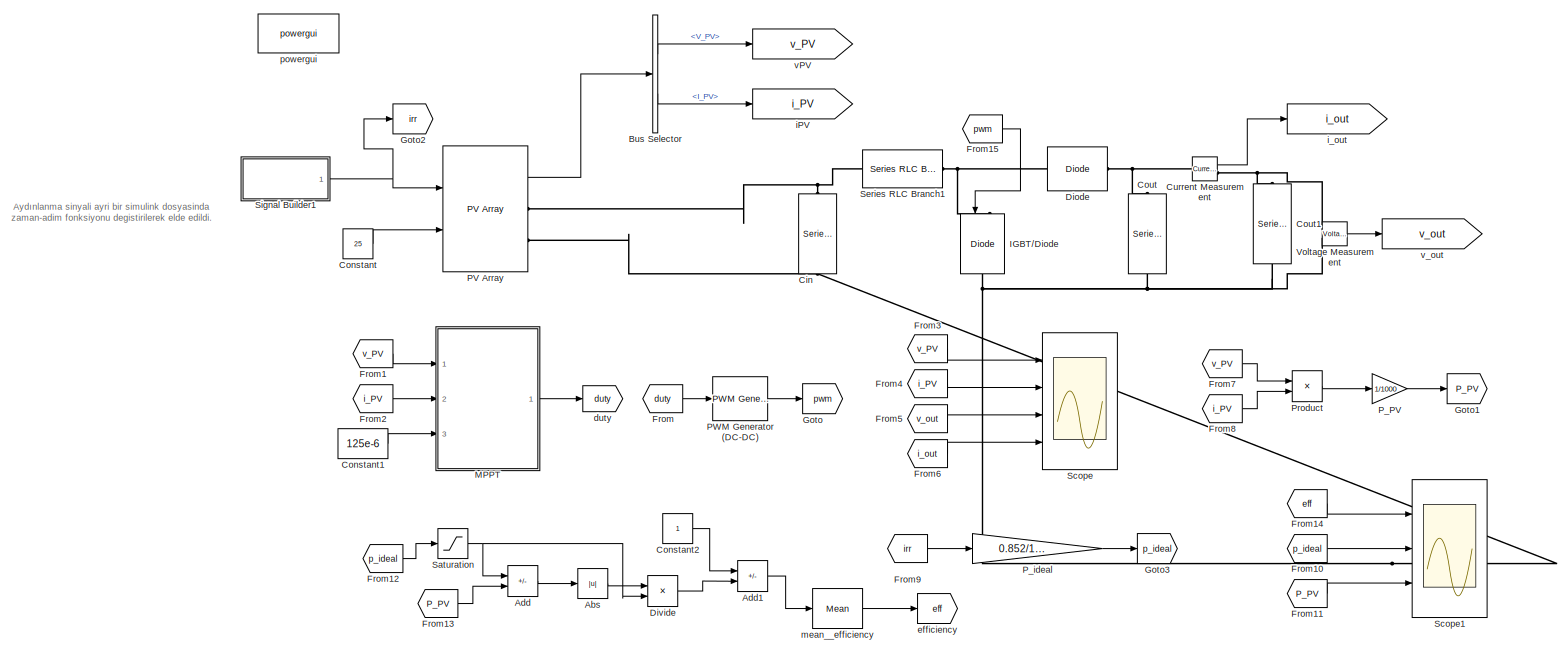
[diagram: root canvas - part 1/1, most of the canvas]
MODEL slx_1683a8a12493
KIND model
CONFIG AbsTol = auto
CONFIG EnableMultiTasking = off
CONFIG FixedStep = 10e-6
CONFIG MaxStep = auto
CONFIG MinStep = auto
CONFIG RelTol = 1e-3
CONFIG SampleTimeConstraint = Unconstrained
CONFIG Solver = VariableStepAuto
CONFIG SolverName = VariableStepAuto
CONFIG StartTime = 0.0
CONFIG StopTime = 10.0
BLOCK [Abs] Abs
  SaturateOnIntegerOverflow = off
BLOCK [Sum] Add
  IconShape = rectangular
  Inputs = +-
  Ports = [2, 1]
BLOCK [Sum] Add1
  IconShape = rectangular
  Inputs = +-
  Ports = [2, 1]
BLOCK [BusSelector] Bus Selector
  OutputSignals = V_PV,I_PV
  Ports = [1, 2]
BLOCK [Reference] Cin  REF=powerlib/Elements/Series RLC Branch
  NameLocation = left
  Ports = [0, 0, 0, 0, 0, 1, 1]
  SourceBlock = powerlib/Elements/Series RLC Branch
  SourceProductBaseCode = PS
  SourceType = Series RLC Branch
BLOCK [Constant] Constant
  Value = 25
BLOCK [Constant] Constant1
  Value = 125e-6
BLOCK [Constant] Constant2
BLOCK [Reference] Cout  REF=powerlib/Elements/Series RLC Branch
  NameLocation = left
  Ports = [0, 0, 0, 0, 0, 1, 1]
  SourceBlock = powerlib/Elements/Series RLC Branch
  SourceProductBaseCode = PS
  SourceType = Series RLC Branch
BLOCK [Reference] Cout1  REF=powerlib/Elements/Series RLC Branch
  NameLocation = left
  Ports = [0, 0, 0, 0, 0, 1, 1]
  SourceBlock = powerlib/Elements/Series RLC Branch
  SourceProductBaseCode = PS
  SourceType = Series RLC Branch
BLOCK [Reference] Current Measurement  REF=powerlib/Measurements/Current Measurement
  Ports = [0, 1, 0, 0, 0, 1, 1]
  SourceBlock = powerlib/Measurements/Current Measurement
  SourceProductBaseCode = PS
  SourceType = Current Measurement
  UserDataPersistent = on
BLOCK [Reference] Diode  REF=powerlib/Power
Electronics/Diode
  Ports = [0, 0, 0, 0, 0, 1, 1]
  SourceBlock = powerlib/Power\nElectronics/Diode
  SourceProductBaseCode = PS
  SourceType = Diode
BLOCK [Product] Divide
  Inputs = */
  Ports = [2, 1]
BLOCK [From] From
  GotoTag = duty
BLOCK [From] From1
  GotoTag = v_PV
BLOCK [From] From10
  GotoTag = p_ideal
BLOCK [From] From11
  GotoTag = P_PV
BLOCK [From] From12
  GotoTag = p_ideal
BLOCK [From] From13
  GotoTag = P_PV
BLOCK [From] From14
  GotoTag = eff
BLOCK [From] From15
  GotoTag = pwm
BLOCK [From] From2
  GotoTag = i_PV
BLOCK [From] From3
  GotoTag = v_PV
BLOCK [From] From4
  GotoTag = i_PV
BLOCK [From] From5
  GotoTag = v_out
BLOCK [From] From6
  GotoTag = i_out
BLOCK [From] From7
  GotoTag = v_PV
BLOCK [From] From8
  GotoTag = i_PV
BLOCK [From] From9
  GotoTag = irr
BLOCK [Goto] Goto
  GotoTag = pwm
BLOCK [Goto] Goto1
  GotoTag = P_PV
BLOCK [Goto] Goto2
  GotoTag = irr
BLOCK [Goto] Goto3
  GotoTag = p_ideal
BLOCK [Reference] IGBT//Diode  REF=powerlib/Power
Electronics/IGBT//Diode
  NameLocation = left
  Ports = [1, 0, 0, 0, 0, 1, 1]
  SourceBlock = powerlib/Power\nElectronics/IGBT//Diode
  SourceProductBaseCode = PS
  SourceType = IGBT/Diode
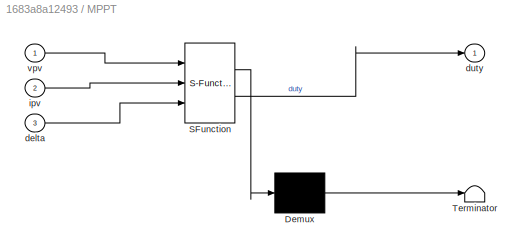
BLOCK [SubSystem] MPPT
  ErrorFcn = Stateflow.Translate.translate
  PermitHierarchicalResolution = ExplicitOnly
  Ports = [3, 1]
  RequestExecContextInheritance = off
  SFBlockType = MATLAB Function
  TreatAsAtomicUnit = on
BLOCK [Demux] MPPT/ Demux 
  Outputs = 1
  Ports = [1, 1]
BLOCK [S-Function] MPPT/ SFunction 
  EnableBusSupport = on
  FunctionName = sf_sfun
  PortCounts = [3 2]
  Ports = [3, 2]
  SFcnIsStateOwnerBlock = off
  SFunctionDeploymentMode = off
  Tag = Stateflow S-Function 2
BLOCK [Terminator] MPPT/ Terminator 
BLOCK [Inport] MPPT/delta
  Port = 3
BLOCK [Outport] MPPT/duty
BLOCK [Inport] MPPT/ipv
  Port = 2
BLOCK [Inport] MPPT/vpv
BLOCK [Reference] PV Array  REF=re_lib/Solar/PV Array
  Ports = [2, 1, 0, 0, 0, 0, 2]
  SourceBlock = re_lib/Solar/PV Array
  SourceProductBaseCode = PS
  SourceType = PV array
BLOCK [Reference] PWM Generator (DC-DC)  REF=powerlib_meascontrol/Pulse & Signal
Generators/PWM Generator
(DC-DC)
  Ports = [1, 1]
  SourceBlock = powerlib_meascontrol/Pulse & Signal\nGenerators/PWM Generator\n(DC-DC)
  SourceProductBaseCode = PS
  SourceType = PWM Generator (DC-DC)
BLOCK [Gain] P_PV
  Gain = 1/1000
BLOCK [Gain] P_ideal
  Gain = 0.852/1000
BLOCK [Product] Product
  Ports = [2, 1]
BLOCK [Saturate] Saturation
  LowerLimit = 0.001
  UpperLimit = 1000
BLOCK [Scope] Scope
  Floating = off
  NumInputPorts = 4
  Ports = [4]
  ScopeSpecificationString = Simulink.scopes.TimeScopeBlockCfg('CurrentConfiguration', extmgr.ConfigurationSet(extmgr.Configuration('Core','General UI',true,'FigureColor',[1 1 1]),extmgr.Configuration('Core','Source UI',true),extmgr.Configuration('Sources','WiredSimulink',true),extmgr.Configuration('Visuals','Time Domain',true,'SerializedDisplays',{struct('MinYLimReal','-5.63581','MaxYLimReal','50.72605','YLabelReal','','MinY...<+7070ch>
BLOCK [Scope] Scope1
  Floating = off
  NumInputPorts = 3
  Ports = [3]
  ScopeSpecificationString = Simulink.scopes.TimeScopeBlockCfg('CurrentConfiguration', extmgr.ConfigurationSet(extmgr.Configuration('Core','General UI',true,'FigureColor',[1 1 1]),extmgr.Configuration('Core','Source UI',true),extmgr.Configuration('Sources','WiredSimulink',true,'DataLoggingVariableName','ScopeData1'),extmgr.Configuration('Visuals','Time Domain',true,'SerializedDisplays',{struct('MinYLimReal','-0.0375','MaxYLim...<+3036ch>
BLOCK [Reference] Series RLC Branch1  REF=powerlib/Elements/Series RLC Branch
  Ports = [0, 0, 0, 0, 0, 1, 1]
  SourceBlock = powerlib/Elements/Series RLC Branch
  SourceProductBaseCode = PS
  SourceType = Series RLC Branch
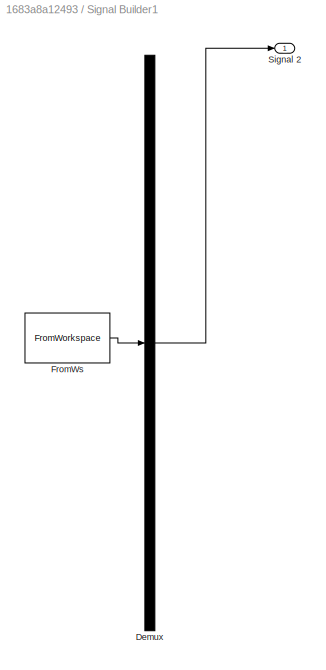
BLOCK [SubSystem] Signal Builder1
  ClipboardFcn = sigbuilder_block('clipboard');
  CloseFcn = sigbuilder_block('close');
  ContinueFcn = sigbuilder_block('continue');
  CopyFcn = sigbuilder_block('copy');
  DeleteFcn = sigbuilder_block('delete');
  LoadFcn = sigbuilder_block('load');
  MaskHideContents = on
  ModelCloseFcn = sigbuilder_block('modelClose');
  NameChangeFcn = sigbuilder_block('namechange');
  OpenFcn = sigbuilder_block('open',[437.6 199.2 550.4 400 ]);
  PauseFcn = sigbuilder_block('pause');
  Ports = [0, 1]
  PreSaveFcn = sigbuilder_block('preSave');
  RequestExecContextInheritance = off
  StartFcn = sigbuilder_block('start');
  StopFcn = sigbuilder_block('stop');
  Tag = STV Subsys
BLOCK [Demux] Signal Builder1/Demux
  DisplayOption = none
  Outputs = 1
  Ports = [1, 1]
  Tag = STV Demux
BLOCK [FromWorkspace] Signal Builder1/FromWs
  Tag = STV FromWs
  VariableName = tuvar
BLOCK [Outport] Signal Builder1/Signal 2
  Tag = STV Outport
BLOCK [Reference] Voltage Measurement  REF=powerlib/Measurements/Voltage Measurement
  Ports = [0, 1, 0, 0, 0, 2]
  SourceBlock = powerlib/Measurements/Voltage Measurement
  SourceProductBaseCode = PS
  SourceType = Voltage Measurement
  UserDataPersistent = on
BLOCK [Goto] duty
  GotoTag = duty
BLOCK [Goto] efficiency
  GotoTag = eff
BLOCK [Goto] iPV
  GotoTag = i_PV
BLOCK [Goto] i_out
  GotoTag = i_out
BLOCK [Reference] mean__efficiency  REF=powerlib_meascontrol/Measurements/Mean
  Ports = [1, 1]
  SourceBlock = powerlib_meascontrol/Measurements/Mean
  SourceProductBaseCode = PS
  SourceType = Mean
BLOCK [Reference] powergui  REF=powerlib/powergui
  Ports = []
  Priority = 1
  SourceBlock = powerlib/powergui
  SourceProductBaseCode = PS
  SourceType = PSB option menu block
BLOCK [Goto] vPV
  GotoTag = v_PV
BLOCK [Goto] v_out
  GotoTag = v_out
ANNOTATION (root): Aydınlanma sinyali ayri bir simulink dosyasinda zaman-adim fonksiyonu degistirilerek elde edildi.
LINE Abs:1 -> Divide:1
LINE Add1:1 -> mean__efficiency:1
LINE Add:1 -> Abs:1
LINE Bus Selector:1 -> vPV:1
LINE Bus Selector:2 -> iPV:1
LINE Constant1:1 -> MPPT:3
LINE Constant2:1 -> Add1:1
LINE Constant:1 -> PV Array:2
LINE Current Measurement:1 -> i_out:1
LINE Divide:1 -> Add1:2
LINE From10:1 -> Scope1:2
LINE From11:1 -> Scope1:3
LINE From12:1 -> Saturation:1
LINE From13:1 -> Add:2
LINE From14:1 -> Scope1:1
LINE From15:1 -> IGBT//Diode:1
LINE From1:1 -> MPPT:1
LINE From2:1 -> MPPT:2
LINE From3:1 -> Scope:1
LINE From4:1 -> Scope:2
LINE From5:1 -> Scope:3
LINE From6:1 -> Scope:4
LINE From7:1 -> Product:1
LINE From8:1 -> Product:2
LINE From9:1 -> P_ideal:1
LINE From:1 -> PWM Generator (DC-DC):1
LINE MPPT:1 -> duty:1
LINE PV Array:1 -> Bus Selector:1
LINE PWM Generator (DC-DC):1 -> Goto:1
LINE P_PV:1 -> Goto1:1
LINE P_ideal:1 -> Goto3:1
LINE Product:1 -> P_PV:1
NET Saturation:1 -> Add:1, Divide:2
NET Signal Builder1:1 -> Goto2:1, PV Array:1
LINE Voltage Measurement:1 -> v_out:1
LINE mean__efficiency:1 -> efficiency:1
PNET net1: Cin:LConn1 -- PV Array:RConn1 -- Series RLC Branch1:LConn1
PNET net2: Cin:RConn1 -- Cout1:RConn1 -- Cout:RConn1 -- IGBT//Diode:RConn1 -- PV Array:RConn2 -- Voltage Measurement:LConn2
PNET net3: Cout1:LConn1 -- Current Measurement:RConn1 -- Voltage Measurement:LConn1
PNET net4: Cout:LConn1 -- Current Measurement:LConn1 -- Diode:RConn1
PNET net5: Diode:LConn1 -- IGBT//Diode:LConn1 -- Series RLC Branch1:RConn1
note: NET lines group one-source signal fan-out (src -> all destinations, sorted); 1:1 wires keep LINE; PNET lines group multi-terminal physical nets as a canonical sorted terminal list (undirected conserving connections); 2-terminal nets keep the pairwise PLINE form
CHART MPPT states=1 transitions=1
  STATE_LABEL 'eML_blk_kernel()'
  STATE_LABEL 'SCRIPT:\nfunction duty = MPPT_algorithm(vpv,ipv,delta)\nduty_init = 0.1;\n%duty limitlemesi gerceklestirildi\nduty_min=0;\nduty_max=0.85;\npersistent Vold Pold duty_old;\n%veri depolanmasi icin\nif isempty(Vold)\n    Vold=0;\n    Pold=0;\n    duty_old=duty_init;\nend\nP= vpv*ipv; %guc\ndV=vpv-Vold; %gerilim degisimi\ndP=P-Pold; %guc degisimi\nif dP ~= 0 && vpv>30\n    if dP<0\n        if dV<0\n            duty=duty_...<+396ch>'
CHART  states=0 transitions=0
